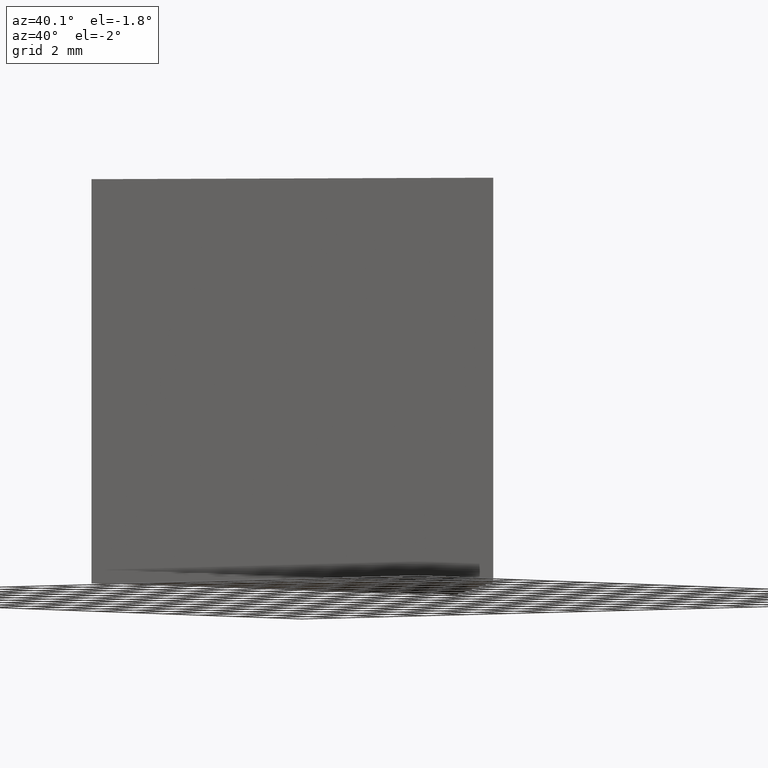
[diagram: clean part render]
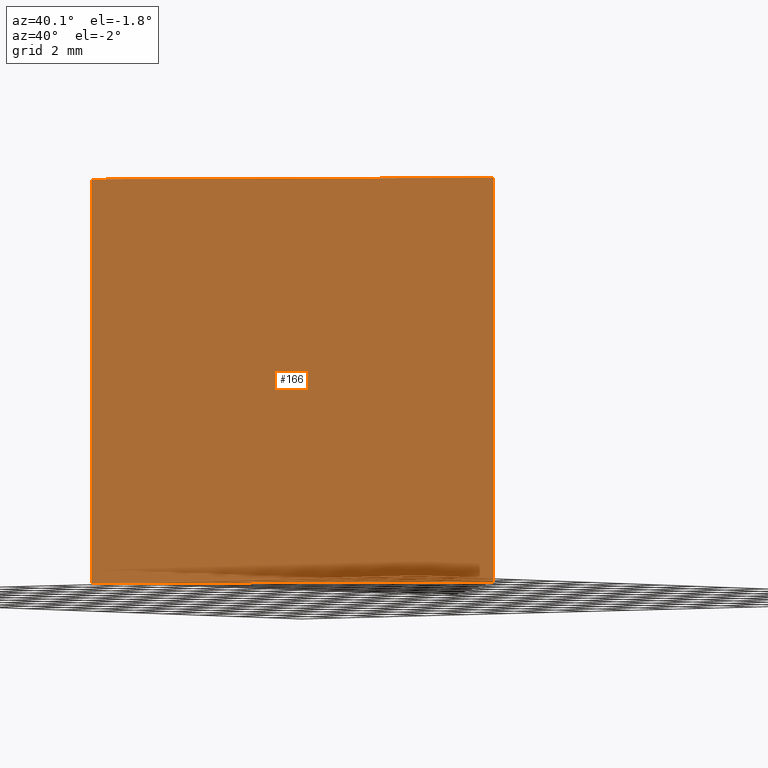
[diagram: same view with one face highlighted and labeled with its STEP entity id]
A machine part, auxiliary view. The second image highlights one B-rep face of the part: STEP entity #166.
In plain terms, the highlighted planar face has unit normal (-0.5514, 0.8342, 0).
Its self-contained STEP definition (entity closure, byte-faithful):
#1 = CARTESIAN_POINT ( 'NONE',  ( 13.19977079032643300, 9.118493995075059600, 15.00000000000000000 ) ) ;
#4 = CARTESIAN_POINT ( 'NONE',  ( 13.19977079032643300, 9.118493995075059600, 0.0000000000000000000 ) ) ;
#13 = DIRECTION ( 'NONE',  ( -0.5514015260034012000, 0.8342399877260262600, 0.0000000000000000000 ) ) ;
#24 = LINE ( 'NONE', #1, #75 ) ;
#27 = ORIENTED_EDGE ( 'NONE', *, *, #112, .F. ) ;
#33 = FACE_OUTER_BOUND ( 'NONE', #64, .T. ) ;
#44 = VECTOR ( 'NONE', #159, 1000.000000000000000 ) ;
#46 = DIRECTION ( 'NONE',  ( -0.0000000000000000000, -0.0000000000000000000, -1.000000000000000000 ) ) ;
#47 = VERTEX_POINT ( 'NONE', #66 ) ;
#59 = LINE ( 'NONE', #61, #154 ) ;
#60 = CARTESIAN_POINT ( 'NONE',  ( 13.19977079032643300, 9.118493995075059600, 15.00000000000000000 ) ) ;
#61 = CARTESIAN_POINT ( 'NONE',  ( 13.19977079032643300, 9.118493995075059600, 15.00000000000000000 ) ) ;
#64 = EDGE_LOOP ( 'NONE', ( #139, #27, #101, #126 ) ) ;
#66 = CARTESIAN_POINT ( 'NONE',  ( 13.19977079032643300, 9.118493995075059600, 0.0000000000000000000 ) ) ;
#67 = DIRECTION ( 'NONE',  ( 0.8342399877260263700, 0.5514015260034012000, -0.0000000000000000000 ) ) ;
#75 = VECTOR ( 'NONE', #147, 1000.000000000000000 ) ;
#86 = LINE ( 'NONE', #144, #44 ) ;
#90 = VECTOR ( 'NONE', #67, 1000.000000000000000 ) ;
#92 = CARTESIAN_POINT ( 'NONE',  ( 0.6861709744360347000, 0.8474711050240408800, 15.00000000000000000 ) ) ;
#97 = EDGE_CURVE ( 'NONE', #135, #47, #152, .T. ) ;
#101 = ORIENTED_EDGE ( 'NONE', *, *, #163, .F. ) ;
#105 = DIRECTION ( 'NONE',  ( -0.8342399877260262600, -0.5514015260034012000, 0.0000000000000000000 ) ) ;
#106 = EDGE_CURVE ( 'NONE', #165, #135, #86, .T. ) ;
#112 = EDGE_CURVE ( 'NONE', #113, #47, #59, .T. ) ;
#113 = VERTEX_POINT ( 'NONE', #149 ) ;
#126 = ORIENTED_EDGE ( 'NONE', *, *, #106, .T. ) ;
#134 = PLANE ( 'NONE',  #141 ) ;
#135 = VERTEX_POINT ( 'NONE', #157 ) ;
#139 = ORIENTED_EDGE ( 'NONE', *, *, #97, .T. ) ;
#141 = AXIS2_PLACEMENT_3D ( 'NONE', #60, #13, #105 ) ;
#144 = CARTESIAN_POINT ( 'NONE',  ( 0.6861709744360347000, 0.8474711050240408800, 15.00000000000000000 ) ) ;
#147 = DIRECTION ( 'NONE',  ( 0.8342399877260263700, 0.5514015260034012000, -0.0000000000000000000 ) ) ;
#149 = CARTESIAN_POINT ( 'NONE',  ( 13.19977079032643300, 9.118493995075059600, 15.00000000000000000 ) ) ;
#152 = LINE ( 'NONE', #4, #90 ) ;
#154 = VECTOR ( 'NONE', #46, 1000.000000000000000 ) ;
#157 = CARTESIAN_POINT ( 'NONE',  ( 0.6861709744360347000, 0.8474711050240408800, 0.0000000000000000000 ) ) ;
#159 = DIRECTION ( 'NONE',  ( -0.0000000000000000000, -0.0000000000000000000, -1.000000000000000000 ) ) ;
#163 = EDGE_CURVE ( 'NONE', #165, #113, #24, .T. ) ;
#165 = VERTEX_POINT ( 'NONE', #92 ) ;
#166 = ADVANCED_FACE ( 'NONE', ( #33 ), #134, .F. ) ;